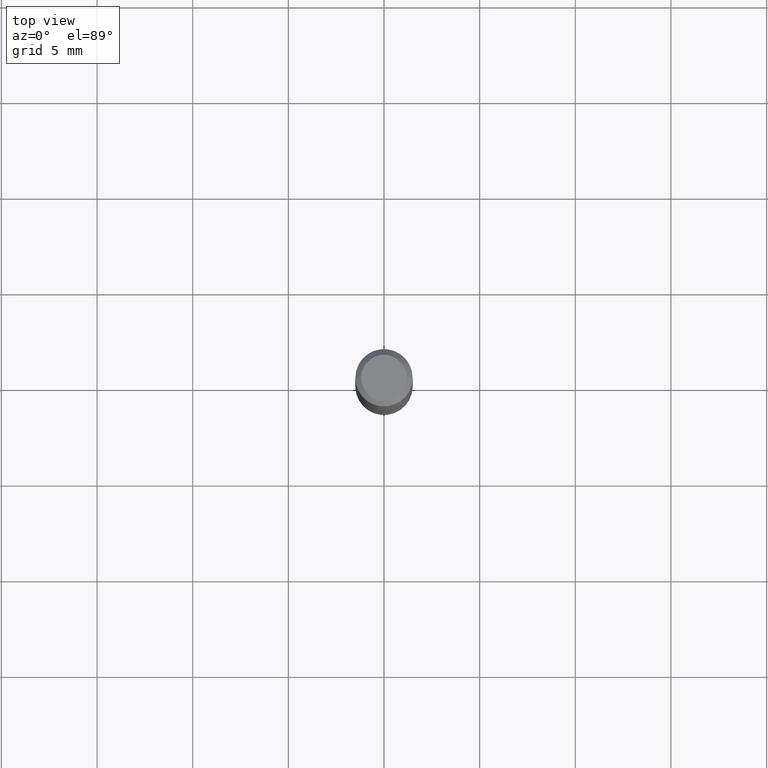
[diagram: clean part render]
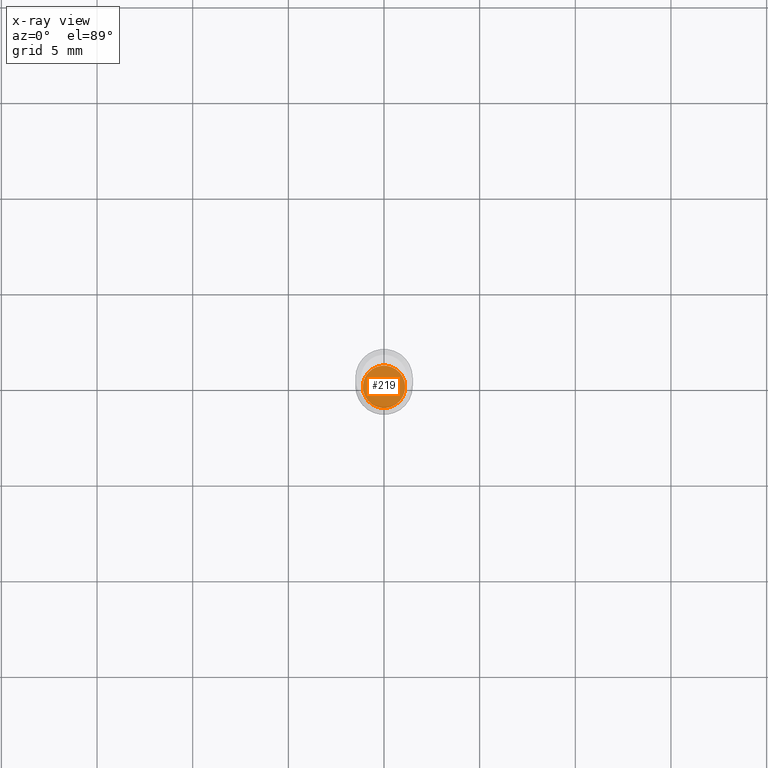
[diagram: x-ray — body ghosted, one internal face saturated and labeled with its STEP entity id]
A machine part, top view, then the same camera in x-ray: the body is ghosted and one INTERNAL B-rep face — a face not visible from any outside direction — is saturated and labeled: STEP entity #219.
In plain terms, the highlighted planar face has unit normal (-0, 0, 1).
Its self-contained STEP definition (entity closure, byte-faithful):
#14 = EDGE_CURVE ( 'NONE', #384, #30, #370, .T. ) ;
#30 = VERTEX_POINT ( 'NONE', #125 ) ;
#35 = CARTESIAN_POINT ( 'NONE',  ( 2.676565608369631794E-29, -3.821426325363822773E-15, -1.094499999999999806 ) ) ;
#47 = CARTESIAN_POINT ( 'NONE',  ( 2.676565608369631794E-29, -3.821426325363822773E-15, -1.094499999999999806 ) ) ;
#64 = DIRECTION ( 'NONE',  ( -2.445468806185136597E-29, 3.491481338843145583E-15, 1.000000000000000000 ) ) ;
#71 = AXIS2_PLACEMENT_3D ( 'NONE', #374, #64, #453 ) ;
#103 = PLANE ( 'NONE',  #477 ) ;
#125 = CARTESIAN_POINT ( 'NONE',  ( 0.04359999999999999987, -4.125883498110944040E-15, -1.094499999999999806 ) ) ;
#147 = DIRECTION ( 'NONE',  ( 1.000000000000000000, -6.982962677686265922E-15, 4.876176775795935793E-29 ) ) ;
#180 = DIRECTION ( 'NONE',  ( 1.000000000000000000, -6.982962677686270655E-15, 0.000000000000000000 ) ) ;
#200 = CARTESIAN_POINT ( 'NONE',  ( -0.04359999999999999987, -3.508980465398308089E-15, -1.094499999999999806 ) ) ;
#204 = EDGE_CURVE ( 'NONE', #30, #384, #290, .T. ) ;
#219 = ADVANCED_FACE ( 'NONE', ( #343 ), #103, .F. ) ;
#253 = AXIS2_PLACEMENT_3D ( 'NONE', #47, #285, #180 ) ;
#270 = ORIENTED_EDGE ( 'NONE', *, *, #204, .F. ) ;
#285 = DIRECTION ( 'NONE',  ( -2.445468806185136597E-29, 3.491481338843145583E-15, 1.000000000000000000 ) ) ;
#290 = CIRCLE ( 'NONE', #71, 0.04359999999999999987 ) ;
#297 = DIRECTION ( 'NONE',  ( -2.438088387897960049E-29, 3.491481338843145188E-15, 1.000000000000000000 ) ) ;
#314 = ORIENTED_EDGE ( 'NONE', *, *, #14, .F. ) ;
#343 = FACE_OUTER_BOUND ( 'NONE', #476, .T. ) ;
#370 = CIRCLE ( 'NONE', #253, 0.04359999999999999987 ) ;
#374 = CARTESIAN_POINT ( 'NONE',  ( 2.676565608369631794E-29, -3.821426325363822773E-15, -1.094499999999999806 ) ) ;
#384 = VERTEX_POINT ( 'NONE', #200 ) ;
#453 = DIRECTION ( 'NONE',  ( 1.000000000000000000, -6.982962677686270655E-15, 0.000000000000000000 ) ) ;
#476 = EDGE_LOOP ( 'NONE', ( #270, #314 ) ) ;
#477 = AXIS2_PLACEMENT_3D ( 'NONE', #35, #297, #147 ) ;